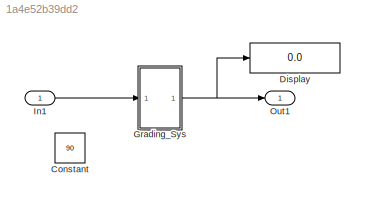
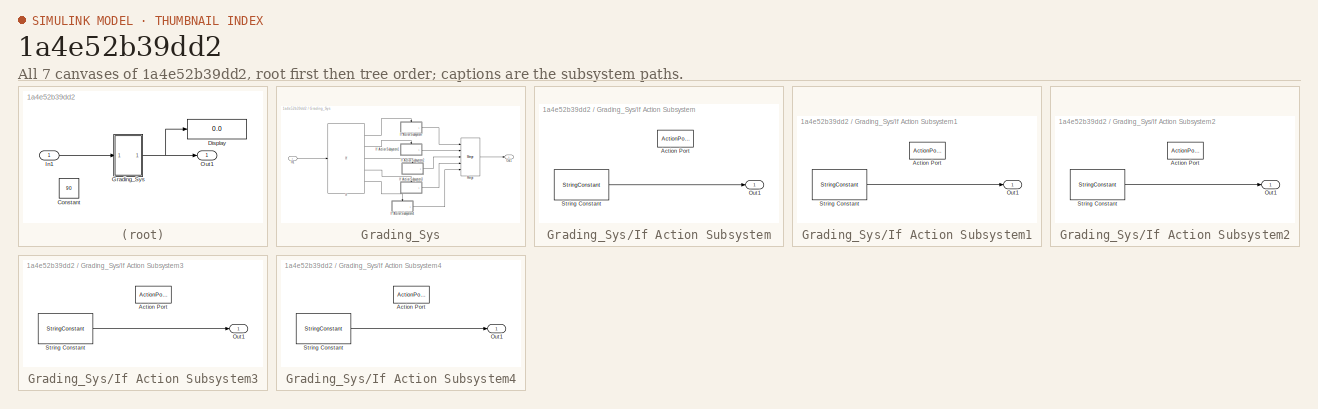
[diagram: thumbnail index - all 7 canvases of the model, root first then tree order]
MODEL slx_1a4e52b39dd2
KIND model
CONFIG AbsTol = auto
CONFIG EnableMultiTasking = off
CONFIG FixedStep = auto
CONFIG MaxStep = auto
CONFIG MinStep = auto
CONFIG RelTol = 1e-3
CONFIG SampleTimeConstraint = Unconstrained
CONFIG SolverName = VariableStepAuto
CONFIG StartTime = 0.0
CONFIG StopTime = 10.0
BLOCK [Constant] Constant
  Value = 90
BLOCK [Display] Display
  Decimation = 1
  Ports = [1]
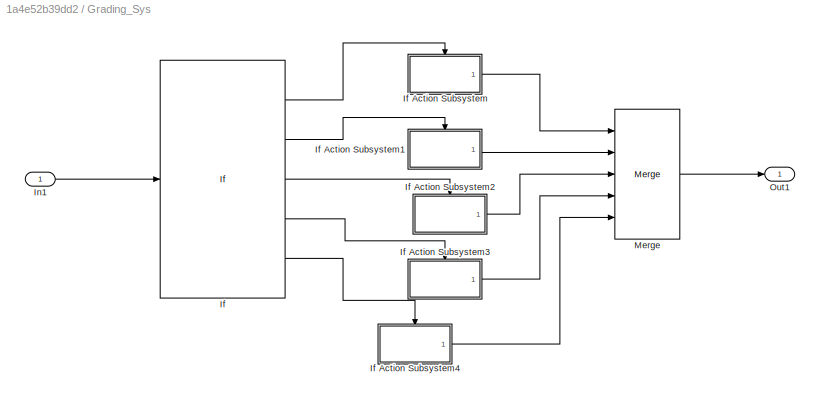
BLOCK [SubSystem] Grading_Sys
  Ports = [1, 1]
  RequestExecContextInheritance = off
BLOCK [If] Grading_Sys/If
  ElseIfExpressions = u1 >= 75, u1 >= 65, u1 >= 55
  IfExpression = u1 >= 85
  Ports = [1, 5]
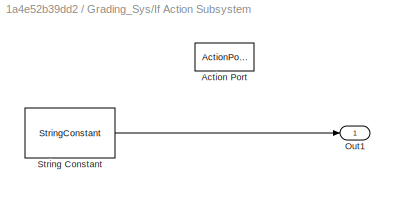
BLOCK [SubSystem] Grading_Sys/If Action Subsystem
  Ports = [0, 1, 0, 0, 0, 0, 0, 1]
  RequestExecContextInheritance = off
  TreatAsAtomicUnit = on
BLOCK [ActionPort] Grading_Sys/If Action Subsystem/Action Port
  ActionPortLabel = if(u1 >= 85)
BLOCK [Outport] Grading_Sys/If Action Subsystem/Out1
BLOCK [StringConstant] Grading_Sys/If Action Subsystem/String Constant
  String = "A"
BLOCK [SubSystem] Grading_Sys/If Action Subsystem1
  Ports = [0, 1, 0, 0, 0, 0, 0, 1]
  RequestExecContextInheritance = off
  TreatAsAtomicUnit = on
BLOCK [ActionPort] Grading_Sys/If Action Subsystem1/Action Port
  ActionPortLabel = elseif(u1 >= 75)
BLOCK [Outport] Grading_Sys/If Action Subsystem1/Out1
BLOCK [StringConstant] Grading_Sys/If Action Subsystem1/String Constant
  String = "B"
BLOCK [SubSystem] Grading_Sys/If Action Subsystem2
  Ports = [0, 1, 0, 0, 0, 0, 0, 1]
  RequestExecContextInheritance = off
  TreatAsAtomicUnit = on
BLOCK [ActionPort] Grading_Sys/If Action Subsystem2/Action Port
  ActionPortLabel = elseif( u1 >= 65)
BLOCK [Outport] Grading_Sys/If Action Subsystem2/Out1
BLOCK [StringConstant] Grading_Sys/If Action Subsystem2/String Constant
  String = "C"
BLOCK [SubSystem] Grading_Sys/If Action Subsystem3
  Ports = [0, 1, 0, 0, 0, 0, 0, 1]
  RequestExecContextInheritance = off
  TreatAsAtomicUnit = on
BLOCK [ActionPort] Grading_Sys/If Action Subsystem3/Action Port
  ActionPortLabel = elseif( u1 >= 55)
BLOCK [Outport] Grading_Sys/If Action Subsystem3/Out1
BLOCK [StringConstant] Grading_Sys/If Action Subsystem3/String Constant
  String = "D"
BLOCK [SubSystem] Grading_Sys/If Action Subsystem4
  Ports = [0, 1, 0, 0, 0, 0, 0, 1]
  RequestExecContextInheritance = off
  TreatAsAtomicUnit = on
BLOCK [ActionPort] Grading_Sys/If Action Subsystem4/Action Port
  ActionPortLabel = else
BLOCK [Outport] Grading_Sys/If Action Subsystem4/Out1
BLOCK [StringConstant] Grading_Sys/If Action Subsystem4/String Constant
  String = "F"
BLOCK [Inport] Grading_Sys/In1
BLOCK [Merge] Grading_Sys/Merge
  Inputs = 5
  Ports = [5, 1]
BLOCK [Outport] Grading_Sys/Out1
BLOCK [Inport] In1
BLOCK [Outport] Out1
LINE Grading_Sys/If Action Subsystem/String Constant:1 -> Grading_Sys/If Action Subsystem/Out1:1
LINE Grading_Sys/If Action Subsystem1/String Constant:1 -> Grading_Sys/If Action Subsystem1/Out1:1
LINE Grading_Sys/If Action Subsystem1:1 -> Grading_Sys/Merge:2
LINE Grading_Sys/If Action Subsystem2/String Constant:1 -> Grading_Sys/If Action Subsystem2/Out1:1
LINE Grading_Sys/If Action Subsystem2:1 -> Grading_Sys/Merge:3
LINE Grading_Sys/If Action Subsystem3/String Constant:1 -> Grading_Sys/If Action Subsystem3/Out1:1
LINE Grading_Sys/If Action Subsystem3:1 -> Grading_Sys/Merge:4
LINE Grading_Sys/If Action Subsystem4/String Constant:1 -> Grading_Sys/If Action Subsystem4/Out1:1
LINE Grading_Sys/If Action Subsystem4:1 -> Grading_Sys/Merge:5
LINE Grading_Sys/If Action Subsystem:1 -> Grading_Sys/Merge:1
LINE Grading_Sys/If:1 -> Grading_Sys/If Action Subsystem:ifaction
LINE Grading_Sys/If:2 -> Grading_Sys/If Action Subsystem1:ifaction
LINE Grading_Sys/If:3 -> Grading_Sys/If Action Subsystem2:ifaction
LINE Grading_Sys/If:4 -> Grading_Sys/If Action Subsystem3:ifaction
LINE Grading_Sys/If:5 -> Grading_Sys/If Action Subsystem4:ifaction
LINE Grading_Sys/In1:1 -> Grading_Sys/If:1
LINE Grading_Sys/Merge:1 -> Grading_Sys/Out1:1
NET Grading_Sys:1 -> Display:1, Out1:1
LINE In1:1 -> Grading_Sys:1
note: NET lines group one-source signal fan-out (src -> all destinations, sorted); 1:1 wires keep LINE
